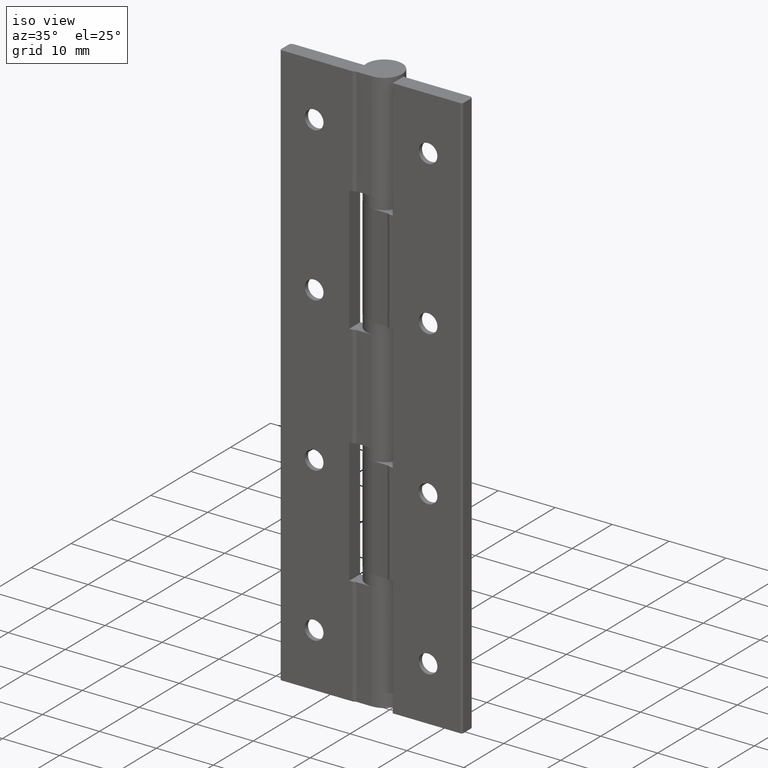
[diagram: clean part render]
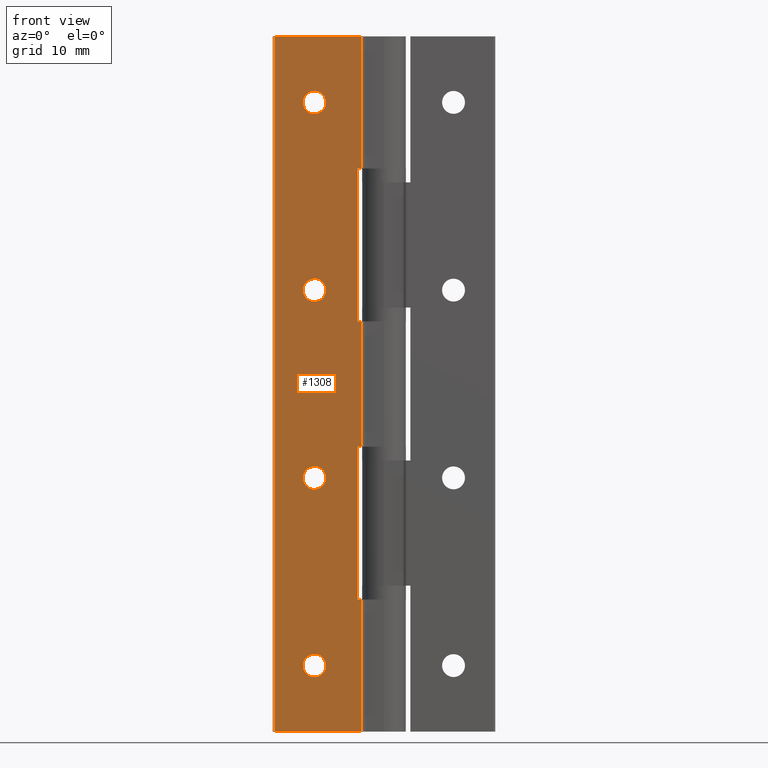
[diagram: tour spotlight — one face highlighted and labeled with its STEP entity id]
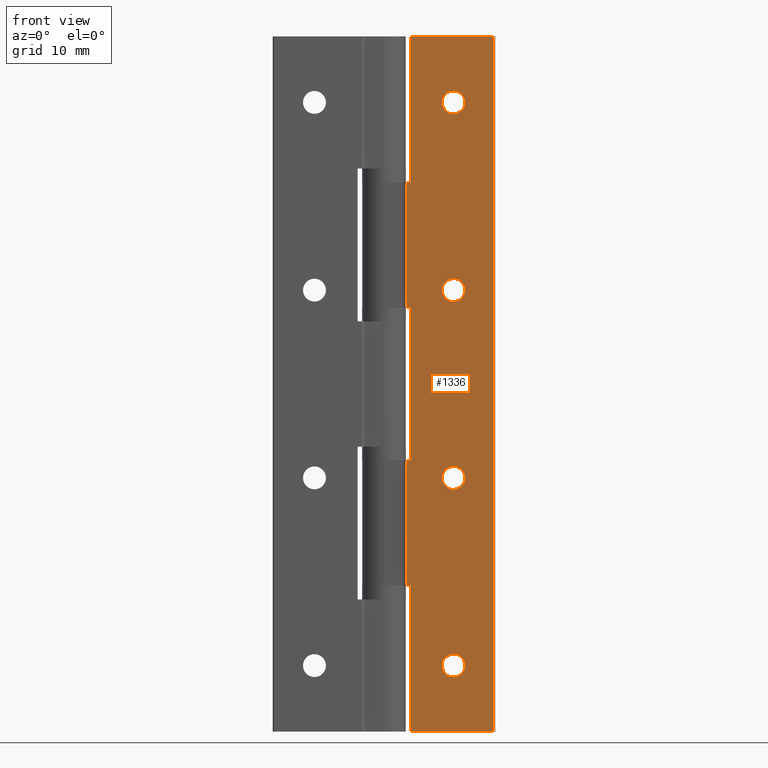
[diagram: tour spotlight — one face highlighted and labeled with its STEP entity id]
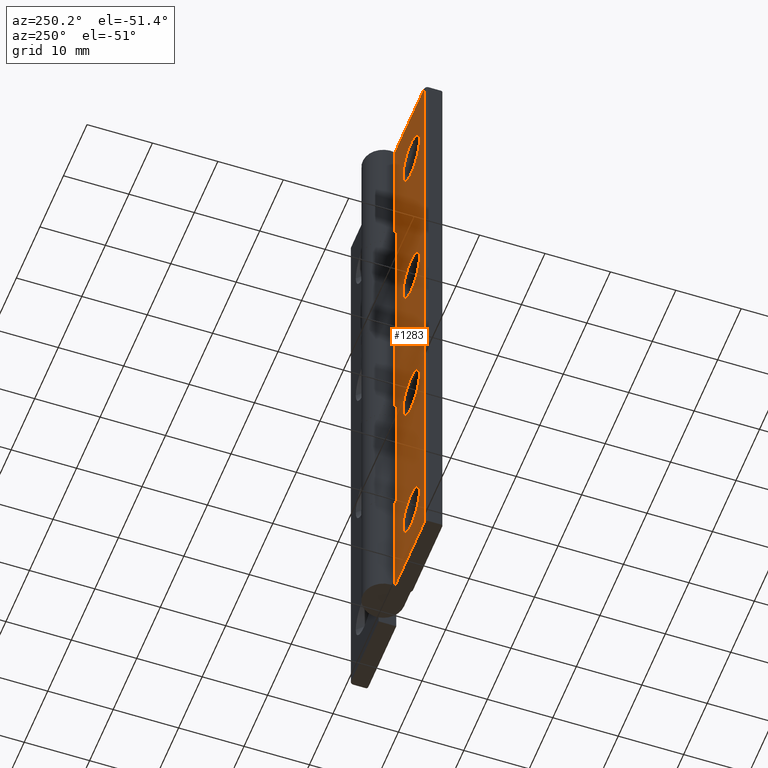
[diagram: tour spotlight — one face highlighted and labeled with its STEP entity id]
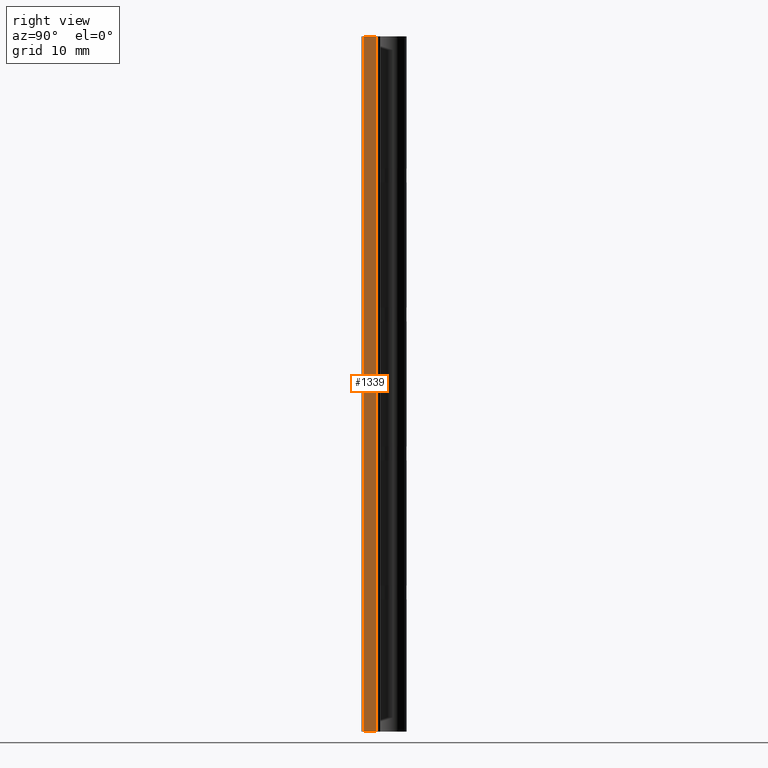
[diagram: tour spotlight — one face highlighted and labeled with its STEP entity id]
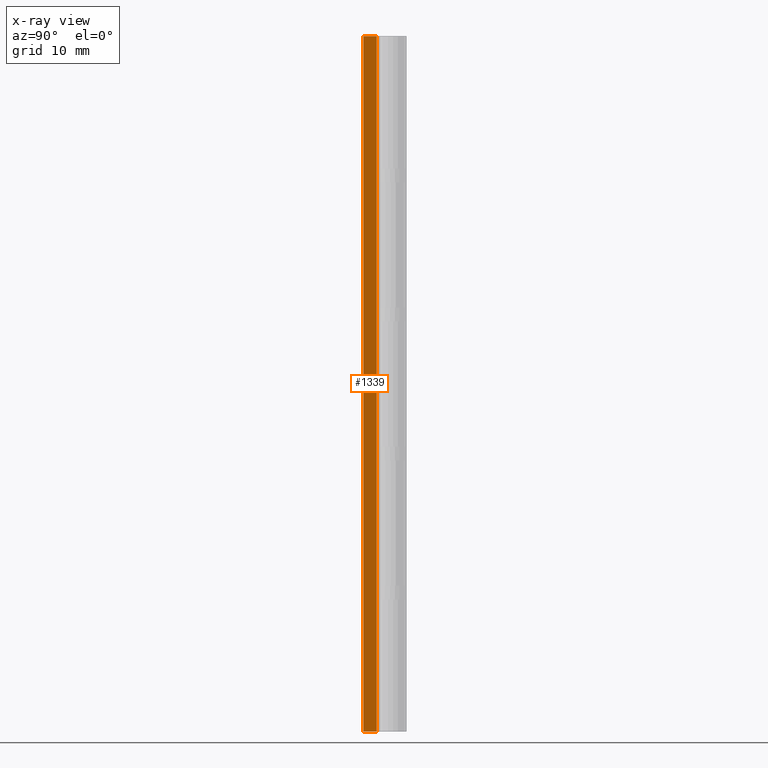
[diagram: x-ray of the same camera — body ghosted, this tour face saturated]
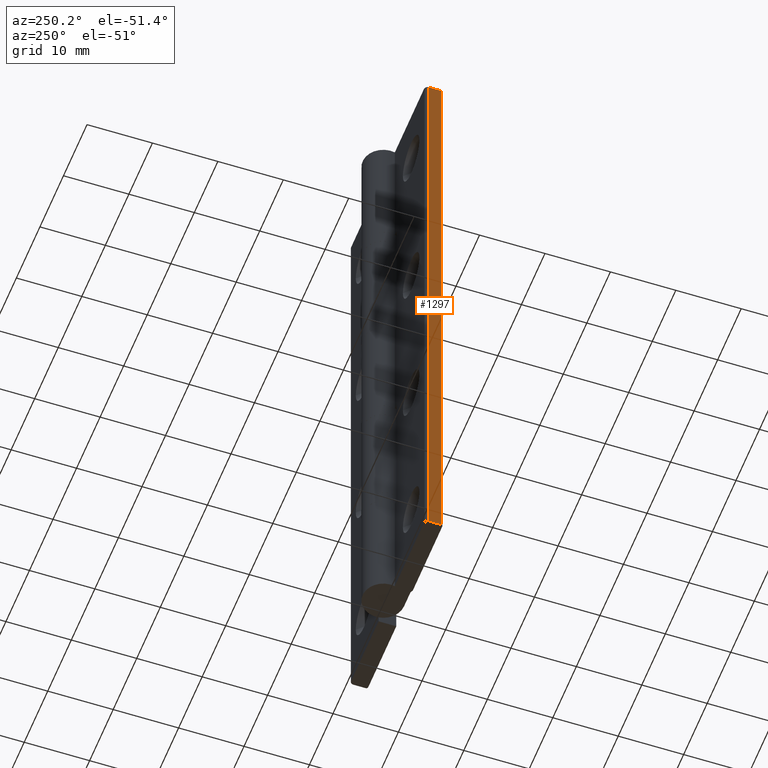
[diagram: tour spotlight — one face highlighted and labeled with its STEP entity id]
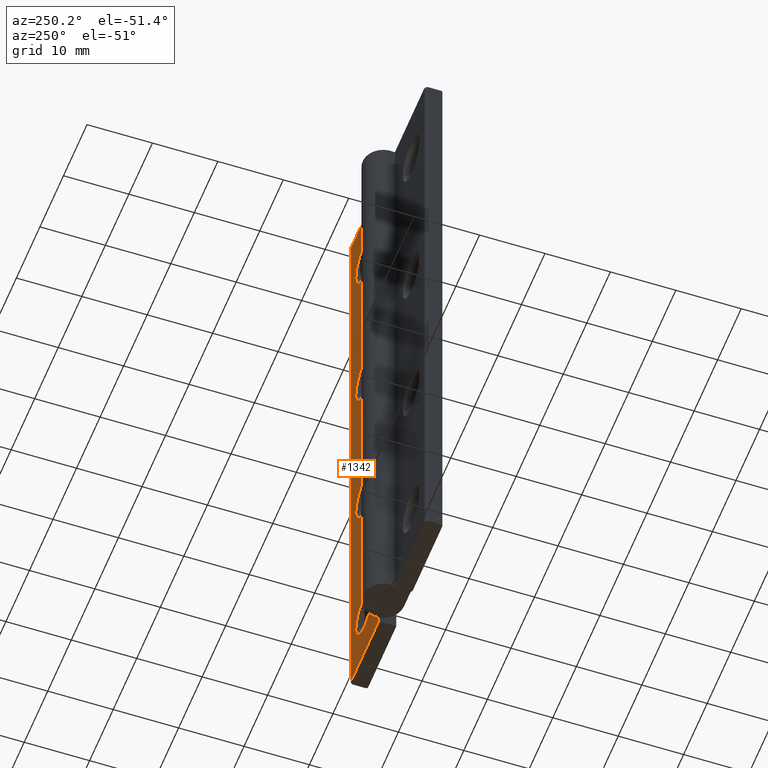
[diagram: tour spotlight — one face highlighted and labeled with its STEP entity id]
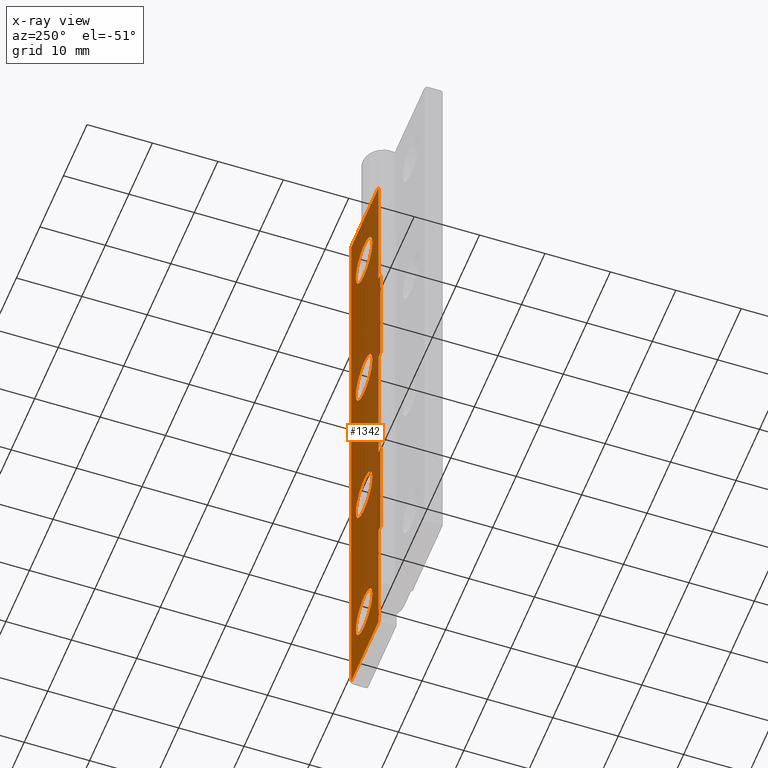
[diagram: x-ray of the same camera — body ghosted, this tour face saturated]
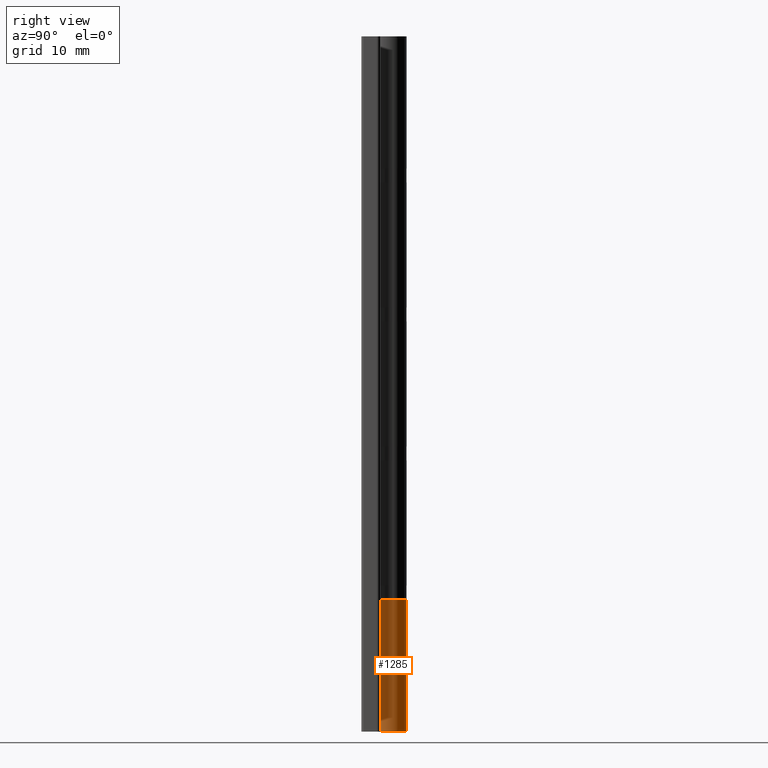
[diagram: tour spotlight — one face highlighted and labeled with its STEP entity id]
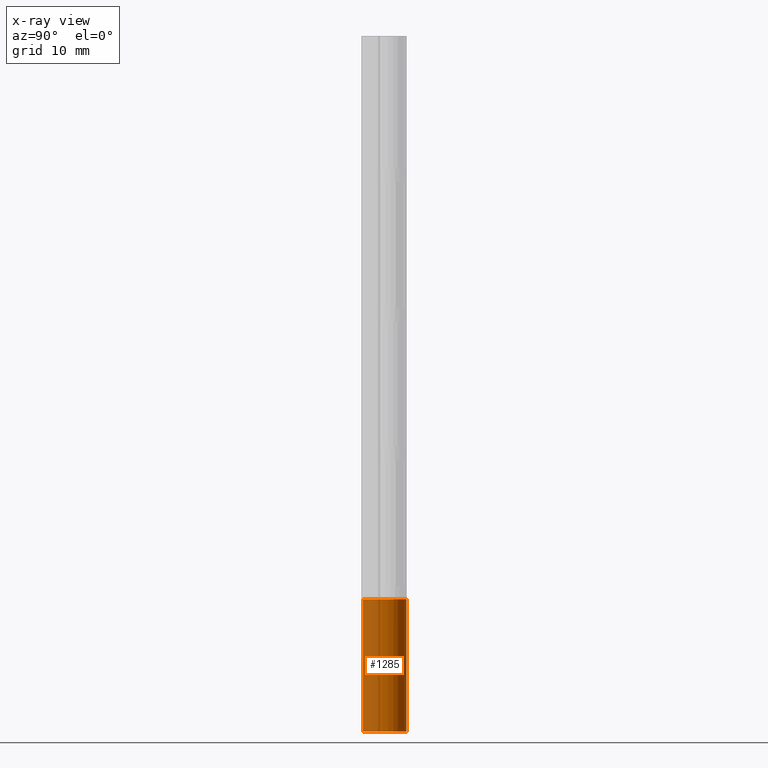
[diagram: x-ray of the same camera — body ghosted, this tour face saturated]
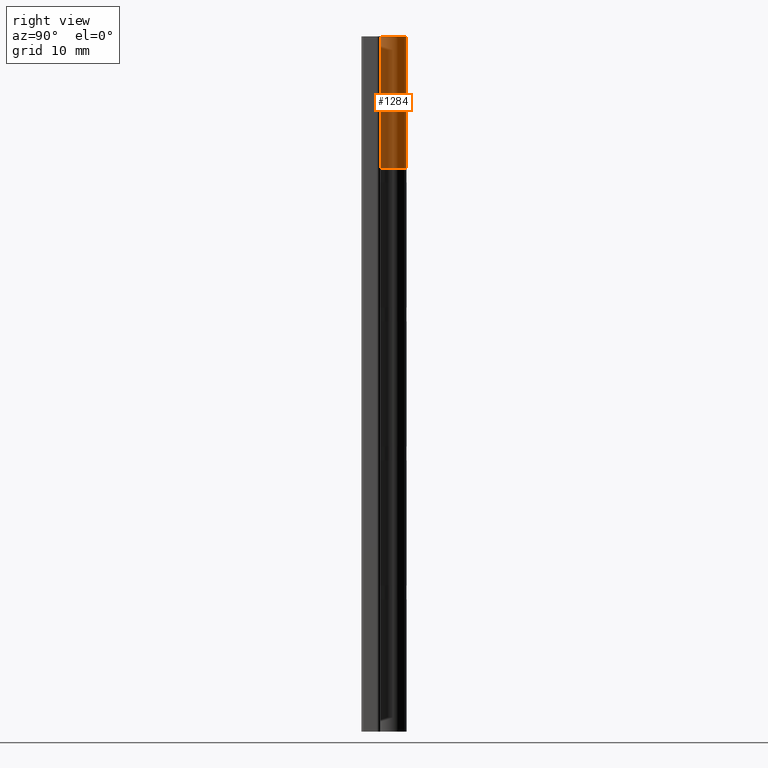
[diagram: tour spotlight — one face highlighted and labeled with its STEP entity id]
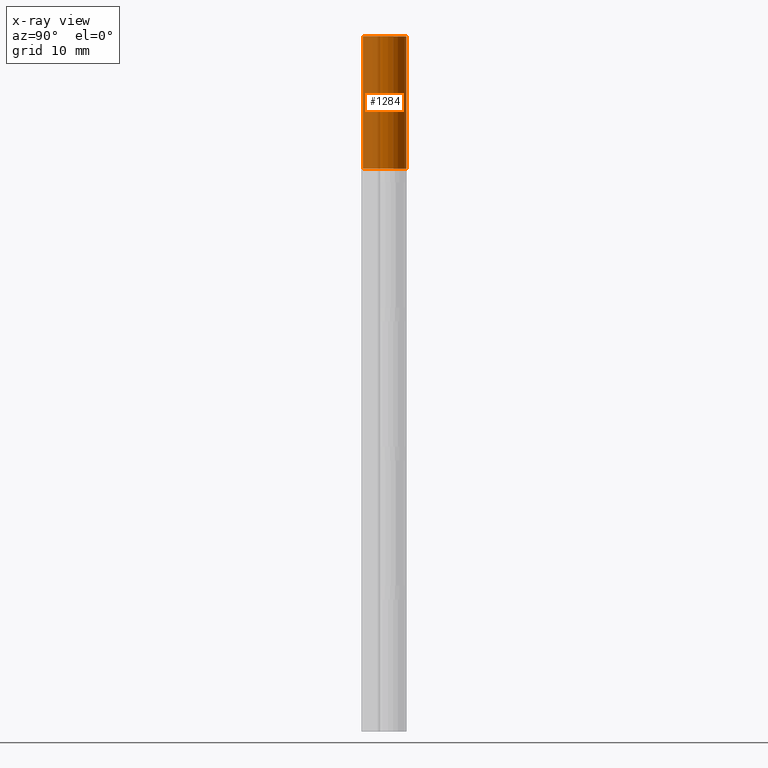
[diagram: x-ray of the same camera — body ghosted, this tour face saturated]
A machine part: a face-by-face anatomy tour. The part has 87 B-rep faces; the first image is the clean iso view, then the 8 largest visible faces are spotlighted one at a time (largest first), each with its STEP entity span.

Face 1 — front view, entity #1308. In plain terms, the highlighted planar face has unit normal (0, -1, 0).
Definition (entity closure, byte-faithful):
#117=FACE_BOUND('',#354,.T.);
#118=FACE_BOUND('',#355,.T.);
#119=FACE_BOUND('',#356,.T.);
#120=FACE_BOUND('',#357,.T.);
#182=CIRCLE('',#1413,1.65);
#184=CIRCLE('',#1417,1.65);
#186=CIRCLE('',#1421,1.65);
#188=CIRCLE('',#1425,1.65);
#259=FACE_OUTER_BOUND('',#353,.T.);
#353=EDGE_LOOP('',(#1045,#1046,#1047,#1048,#1049,#1050,#1051,#1052,#1053,
#1054,#1055,#1056));
#354=EDGE_LOOP('',(#1057));
#355=EDGE_LOOP('',(#1058));
#356=EDGE_LOOP('',(#1059));
#357=EDGE_LOOP('',(#1060));
#432=LINE('',#1950,#523);
#435=LINE('',#1956,#526);
#439=LINE('',#1977,#530);
#442=LINE('',#1987,#533);
#445=LINE('',#1993,#536);
#449=LINE('',#2014,#540);
#465=LINE('',#2065,#556);
#466=LINE('',#2068,#557);
#467=LINE('',#2079,#558);
#470=LINE('',#2087,#561);
#474=LINE('',#2120,#565);
#475=LINE('',#2122,#566);
#523=VECTOR('',#1527,22.);
#526=VECTOR('',#1532,0.517792998515527);
#530=VECTOR('',#1552,0.517792998515522);
#533=VECTOR('',#1559,22.);
#536=VECTOR('',#1564,0.517792998515518);
#540=VECTOR('',#1584,0.517792998515516);
#556=VECTOR('',#1638,19.);
#557=VECTOR('',#1641,19.);
#558=VECTOR('',#1654,100.);
#561=VECTOR('',#1663,12.4177929985155);
#565=VECTOR('',#1707,18.);
#566=VECTOR('',#1710,12.4177929985155);
#614=VERTEX_POINT('',#1947);
#615=VERTEX_POINT('',#1949);
#617=VERTEX_POINT('',#1955);
#626=VERTEX_POINT('',#1975);
#630=VERTEX_POINT('',#1984);
#631=VERTEX_POINT('',#1986);
#633=VERTEX_POINT('',#1992);
#642=VERTEX_POINT('',#2012);
#658=VERTEX_POINT('',#2063);
#659=VERTEX_POINT('',#2067);
#662=VERTEX_POINT('',#2076);
#663=VERTEX_POINT('',#2078);
#668=VERTEX_POINT('',#2098);
#670=VERTEX_POINT('',#2104);
#672=VERTEX_POINT('',#2110);
#674=VERTEX_POINT('',#2116);
#740=EDGE_CURVE('',#615,#614,#432,.T.);
#743=EDGE_CURVE('',#617,#615,#435,.T.);
#754=EDGE_CURVE('',#614,#626,#439,.T.);
#758=EDGE_CURVE('',#631,#630,#442,.T.);
#761=EDGE_CURVE('',#633,#631,#445,.T.);
#772=EDGE_CURVE('',#630,#642,#449,.T.);
#798=EDGE_CURVE('',#658,#642,#465,.T.);
#799=EDGE_CURVE('',#617,#659,#466,.T.);
#803=EDGE_CURVE('',#662,#663,#467,.T.);
#808=EDGE_CURVE('',#659,#662,#470,.T.);
#813=EDGE_CURVE('',#668,#668,#182,.T.);
#815=EDGE_CURVE('',#670,#670,#184,.T.);
#817=EDGE_CURVE('',#672,#672,#186,.T.);
#819=EDGE_CURVE('',#674,#674,#188,.T.);
#821=EDGE_CURVE('',#633,#626,#474,.T.);
#822=EDGE_CURVE('',#658,#663,#475,.T.);
#1045=ORIENTED_EDGE('',*,*,#754,.T.);
#1046=ORIENTED_EDGE('',*,*,#821,.F.);
#1047=ORIENTED_EDGE('',*,*,#761,.T.);
#1048=ORIENTED_EDGE('',*,*,#758,.T.);
#1049=ORIENTED_EDGE('',*,*,#772,.T.);
#1050=ORIENTED_EDGE('',*,*,#798,.F.);
#1051=ORIENTED_EDGE('',*,*,#822,.T.);
#1052=ORIENTED_EDGE('',*,*,#803,.F.);
#1053=ORIENTED_EDGE('',*,*,#808,.F.);
#1054=ORIENTED_EDGE('',*,*,#799,.F.);
#1055=ORIENTED_EDGE('',*,*,#743,.T.);
#1056=ORIENTED_EDGE('',*,*,#740,.T.);
#1057=ORIENTED_EDGE('',*,*,#813,.T.);
#1058=ORIENTED_EDGE('',*,*,#815,.T.);
#1059=ORIENTED_EDGE('',*,*,#817,.T.);
#1060=ORIENTED_EDGE('',*,*,#819,.T.);
#1256=PLANE('',#1427);
#1308=ADVANCED_FACE('',(#259,#117,#118,#119,#120),#1256,.T.);
#1413=AXIS2_PLACEMENT_3D('',#2099,#1678,#1679);
#1417=AXIS2_PLACEMENT_3D('',#2105,#1686,#1687);
#1421=AXIS2_PLACEMENT_3D('',#2111,#1694,#1695);
#1425=AXIS2_PLACEMENT_3D('',#2117,#1702,#1703);
#1427=AXIS2_PLACEMENT_3D('',#2121,#1708,#1709);
#1527=DIRECTION('',(2.01858731750028E-16,1.40067632319072E-32,1.));
#1532=DIRECTION('',(-1.,-6.93889390390723E-17,0.));
#1552=DIRECTION('',(1.,6.93889390390723E-17,0.));
#1559=DIRECTION('',(1.00929365875014E-16,7.00338161595358E-33,1.));
#1564=DIRECTION('',(-1.,-6.93889390390723E-17,0.));
#1584=DIRECTION('',(1.,6.93889390390723E-17,0.));
#1638=DIRECTION('',(0.,0.,-1.));
#1641=DIRECTION('',(0.,0.,-1.));
#1654=DIRECTION('',(0.,0.,1.));
#1663=DIRECTION('',(-1.,-6.93889390390723E-17,0.));
#1678=DIRECTION('center_axis',(-6.93889390390723E-17,1.,0.));
#1679=DIRECTION('ref_axis',(1.,0.,0.));
#1686=DIRECTION('center_axis',(-6.93889390390723E-17,1.,0.));
#1687=DIRECTION('ref_axis',(1.,0.,0.));
#1694=DIRECTION('center_axis',(-6.93889390390723E-17,1.,0.));
#1695=DIRECTION('ref_axis',(1.,0.,0.));
#1702=DIRECTION('center_axis',(-6.93889390390723E-17,1.,0.));
#1703=DIRECTION('ref_axis',(1.,0.,0.));
#1707=DIRECTION('',(0.,0.,-1.));
#1708=DIRECTION('center_axis',(6.93889390390723E-17,-1.,0.));
#1709=DIRECTION('ref_axis',(-1.,-6.93889390390723E-17,0.));
#1710=DIRECTION('',(-1.,-6.93889390390723E-17,0.));
#1947=CARTESIAN_POINT('',(-3.80000000000001,1.11022302462516E-15,-59.));
#1949=CARTESIAN_POINT('',(-3.80000000000001,1.11022302462516E-15,-81.));
#1950=CARTESIAN_POINT('',(-3.80000000000001,8.32667268468867E-16,-40.5));
#1955=CARTESIAN_POINT('',(-3.28220700148449,9.0205620750794E-16,-81.));
#1956=CARTESIAN_POINT('',(4.27262075863903,1.38777878078145E-15,-81.));
#1975=CARTESIAN_POINT('',(-3.28220700148449,9.0205620750794E-16,-59.));
#1977=CARTESIAN_POINT('',(-1.90000000000001,1.11022302462516E-15,-59.));
#1984=CARTESIAN_POINT('',(-3.8,1.11022302462516E-15,-19.));
#1986=CARTESIAN_POINT('',(-3.80000000000001,1.11022302462516E-15,-41.));
#1987=CARTESIAN_POINT('',(-3.8,8.32667268468867E-16,-20.5));
#1992=CARTESIAN_POINT('',(-3.28220700148449,9.0205620750794E-16,-41.));
#1993=CARTESIAN_POINT('',(3.20293429215495,1.38777878078145E-15,-41.));
#2012=CARTESIAN_POINT('',(-3.28220700148449,9.0205620750794E-16,-19.));
#2014=CARTESIAN_POINT('',(-1.9,1.11022302462516E-15,-19.));
#2063=CARTESIAN_POINT('',(-3.28220700148449,8.82474163085533E-16,0.));
#2065=CARTESIAN_POINT('',(-3.28220700148449,9.0205620750794E-16,0.));
#2067=CARTESIAN_POINT('',(-3.28220700148449,8.82474163085533E-16,-100.));
#2068=CARTESIAN_POINT('',(-3.28220700148449,9.0205620750794E-16,0.));
#2076=CARTESIAN_POINT('',(-15.7,2.08166817117216E-17,-100.));
#2078=CARTESIAN_POINT('',(-15.7,2.08166817117216E-17,0.));
#2079=CARTESIAN_POINT('',(-15.7,3.46944695195361E-17,0.));
#2087=CARTESIAN_POINT('',(1.65327317884893E-16,1.11022302462516E-15,-100.));
#2098=CARTESIAN_POINT('',(-11.65,0.,-36.5));
#2099=CARTESIAN_POINT('Origin',(-10.,0.,-36.5));
#2104=CARTESIAN_POINT('',(-11.65,0.,-90.5));
#2105=CARTESIAN_POINT('Origin',(-10.,0.,-90.5));
#2110=CARTESIAN_POINT('',(-11.65,0.,-63.5));
#2111=CARTESIAN_POINT('Origin',(-10.,0.,-63.5));
#2116=CARTESIAN_POINT('',(-11.65,0.,-9.5));
#2117=CARTESIAN_POINT('Origin',(-10.,0.,-9.5));
#2120=CARTESIAN_POINT('',(-3.28220700148449,9.0205620750794E-16,0.));
#2121=CARTESIAN_POINT('Origin',(1.65327317884893E-16,1.11022302462516E-15,
0.));
#2122=CARTESIAN_POINT('',(1.65327317884893E-16,1.11022302462516E-15,0.));

Face 2 — front view, entity #1336. In plain terms, the highlighted planar face has unit normal (0, -1, 0).
Definition (entity closure, byte-faithful):
#132=FACE_BOUND('',#397,.T.);
#133=FACE_BOUND('',#398,.T.);
#134=FACE_BOUND('',#399,.T.);
#135=FACE_BOUND('',#400,.T.);
#214=CIRCLE('',#1484,1.65);
#215=CIRCLE('',#1485,1.65);
#216=CIRCLE('',#1486,1.65);
#217=CIRCLE('',#1487,1.65);
#287=FACE_OUTER_BOUND('',#396,.T.);
#396=EDGE_LOOP('',(#1175,#1176,#1177,#1178,#1179,#1180,#1181,#1182,#1183,
#1184,#1185,#1186));
#397=EDGE_LOOP('',(#1187));
#398=EDGE_LOOP('',(#1188));
#399=EDGE_LOOP('',(#1189));
#400=EDGE_LOOP('',(#1190));
#479=LINE('',#2159,#570);
#483=LINE('',#2174,#574);
#486=LINE('',#2186,#577);
#489=LINE('',#2196,#580);
#493=LINE('',#2209,#584);
#496=LINE('',#2219,#587);
#500=LINE('',#2234,#591);
#501=LINE('',#2237,#592);
#512=LINE('',#2260,#603);
#513=LINE('',#2262,#604);
#514=LINE('',#2265,#605);
#515=LINE('',#2266,#606);
#570=VECTOR('',#1758,0.51779299851551);
#574=VECTOR('',#1772,22.);
#577=VECTOR('',#1783,0.517792998515508);
#580=VECTOR('',#1790,21.);
#584=VECTOR('',#1802,0.517792998515508);
#587=VECTOR('',#1809,0.517792998515507);
#591=VECTOR('',#1823,21.);
#592=VECTOR('',#1826,11.9);
#603=VECTOR('',#1855,18.);
#604=VECTOR('',#1858,18.);
#605=VECTOR('',#1861,11.9);
#606=VECTOR('',#1862,100.);
#684=VERTEX_POINT('',#2156);
#685=VERTEX_POINT('',#2158);
#691=VERTEX_POINT('',#2172);
#696=VERTEX_POINT('',#2184);
#700=VERTEX_POINT('',#2193);
#701=VERTEX_POINT('',#2195);
#706=VERTEX_POINT('',#2207);
#710=VERTEX_POINT('',#2216);
#711=VERTEX_POINT('',#2218);
#717=VERTEX_POINT('',#2232);
#718=VERTEX_POINT('',#2236);
#722=VERTEX_POINT('',#2264);
#723=VERTEX_POINT('',#2267);
#724=VERTEX_POINT('',#2269);
#725=VERTEX_POINT('',#2271);
#726=VERTEX_POINT('',#2273);
#833=EDGE_CURVE('',#685,#684,#479,.T.);
#841=EDGE_CURVE('',#684,#691,#483,.T.);
#847=EDGE_CURVE('',#691,#696,#486,.T.);
#851=EDGE_CURVE('',#701,#700,#489,.T.);
#858=EDGE_CURVE('',#700,#706,#493,.T.);
#862=EDGE_CURVE('',#711,#710,#496,.T.);
#870=EDGE_CURVE('',#710,#717,#500,.T.);
#871=EDGE_CURVE('',#718,#701,#501,.T.);
#884=EDGE_CURVE('',#711,#696,#512,.T.);
#885=EDGE_CURVE('',#685,#706,#513,.T.);
#886=EDGE_CURVE('',#722,#717,#514,.T.);
#887=EDGE_CURVE('',#718,#722,#515,.T.);
#888=EDGE_CURVE('',#723,#723,#214,.T.);
#889=EDGE_CURVE('',#724,#724,#215,.T.);
#890=EDGE_CURVE('',#725,#725,#216,.T.);
#891=EDGE_CURVE('',#726,#726,#217,.T.);
#1175=ORIENTED_EDGE('',*,*,#833,.T.);
#1176=ORIENTED_EDGE('',*,*,#841,.T.);
#1177=ORIENTED_EDGE('',*,*,#847,.T.);
#1178=ORIENTED_EDGE('',*,*,#884,.F.);
#1179=ORIENTED_EDGE('',*,*,#862,.T.);
#1180=ORIENTED_EDGE('',*,*,#870,.T.);
#1181=ORIENTED_EDGE('',*,*,#886,.F.);
#1182=ORIENTED_EDGE('',*,*,#887,.F.);
#1183=ORIENTED_EDGE('',*,*,#871,.T.);
#1184=ORIENTED_EDGE('',*,*,#851,.T.);
#1185=ORIENTED_EDGE('',*,*,#858,.T.);
#1186=ORIENTED_EDGE('',*,*,#885,.F.);
#1187=ORIENTED_EDGE('',*,*,#888,.T.);
#1188=ORIENTED_EDGE('',*,*,#889,.T.);
#1189=ORIENTED_EDGE('',*,*,#890,.T.);
#1190=ORIENTED_EDGE('',*,*,#891,.T.);
#1273=PLANE('',#1483);
#1336=ADVANCED_FACE('',(#287,#132,#133,#134,#135),#1273,.T.);
#1483=AXIS2_PLACEMENT_3D('',#2263,#1859,#1860);
#1484=AXIS2_PLACEMENT_3D('',#2268,#1863,#1864);
#1485=AXIS2_PLACEMENT_3D('',#2270,#1865,#1866);
#1486=AXIS2_PLACEMENT_3D('',#2272,#1867,#1868);
#1487=AXIS2_PLACEMENT_3D('',#2274,#1869,#1870);
#1758=DIRECTION('',(1.,1.73472347597681E-16,0.));
#1772=DIRECTION('',(-9.46212805078258E-17,-1.64141756623912E-32,-1.));
#1783=DIRECTION('',(-1.,-1.73472347597681E-16,0.));
#1790=DIRECTION('',(-1.71820230001512E-16,-2.98060586631358E-32,-1.));
#1802=DIRECTION('',(-1.,-1.73472347597681E-16,0.));
#1809=DIRECTION('',(1.,1.73472347597681E-16,0.));
#1823=DIRECTION('',(-5.28677630773884E-17,-9.17109497327255E-33,-1.));
#1826=DIRECTION('',(-1.,-1.73472347597681E-16,0.));
#1855=DIRECTION('',(0.,0.,1.));
#1858=DIRECTION('',(0.,0.,1.));
#1859=DIRECTION('center_axis',(1.73472347597681E-16,-1.,0.));
#1860=DIRECTION('ref_axis',(-1.,-1.77635683940025E-16,0.));
#1861=DIRECTION('',(-1.,-1.73472347597681E-16,0.));
#1862=DIRECTION('',(0.,0.,-1.));
#1863=DIRECTION('center_axis',(-1.73472347597681E-16,1.,0.));
#1864=DIRECTION('ref_axis',(1.,0.,0.));
#1865=DIRECTION('center_axis',(-1.73472347597681E-16,1.,0.));
#1866=DIRECTION('ref_axis',(1.,0.,0.));
#1867=DIRECTION('center_axis',(-1.73472347597681E-16,1.,0.));
#1868=DIRECTION('ref_axis',(1.,0.,0.));
#1869=DIRECTION('center_axis',(-1.73472347597681E-16,1.,0.));
#1870=DIRECTION('ref_axis',(1.,0.,0.));
#2156=CARTESIAN_POINT('',(3.8,-3.35,-39.));
#2158=CARTESIAN_POINT('',(3.28220700148449,-3.35,-39.));
#2159=CARTESIAN_POINT('',(4.02527069555838,-3.35,-39.));
#2172=CARTESIAN_POINT('',(3.8,-3.35,-61.));
#2174=CARTESIAN_POINT('',(3.8,-3.35,-19.5));
#2184=CARTESIAN_POINT('',(3.28220700148449,-3.35,-61.));
#2186=CARTESIAN_POINT('',(9.9,-3.35,-61.));
#2193=CARTESIAN_POINT('',(3.8,-3.35,-21.));
#2195=CARTESIAN_POINT('',(3.8,-3.35,0.));
#2196=CARTESIAN_POINT('',(3.8,-3.35,1.04810340300922E-15));
#2207=CARTESIAN_POINT('',(3.28220700148449,-3.35,-21.));
#2209=CARTESIAN_POINT('',(9.9,-3.35,-21.));
#2216=CARTESIAN_POINT('',(3.8,-3.35,-79.));
#2218=CARTESIAN_POINT('',(3.28220700148449,-3.35,-79.));
#2219=CARTESIAN_POINT('',(5.2764002551698,-3.35,-79.));
#2232=CARTESIAN_POINT('',(3.79999999999999,-3.35,-100.));
#2234=CARTESIAN_POINT('',(3.8,-3.35,-39.5));
#2236=CARTESIAN_POINT('',(15.7,-3.35,0.));
#2237=CARTESIAN_POINT('',(16.,-3.35,0.));
#2260=CARTESIAN_POINT('',(3.28220700148449,-3.35,0.));
#2262=CARTESIAN_POINT('',(3.28220700148449,-3.35,0.));
#2263=CARTESIAN_POINT('Origin',(16.,-3.35,0.));
#2264=CARTESIAN_POINT('',(15.7,-3.35,-100.));
#2265=CARTESIAN_POINT('',(16.,-3.35,-100.));
#2266=CARTESIAN_POINT('',(15.7,-3.35,0.));
#2267=CARTESIAN_POINT('',(8.35,-3.34999999999999,-9.5));
#2268=CARTESIAN_POINT('Origin',(10.,-3.34999999999999,-9.5));
#2269=CARTESIAN_POINT('',(8.35,-3.34999999999999,-90.5));
#2270=CARTESIAN_POINT('Origin',(10.,-3.34999999999999,-90.5));
#2271=CARTESIAN_POINT('',(8.35,-3.34999999999999,-63.5));
#2272=CARTESIAN_POINT('Origin',(10.,-3.34999999999999,-63.5));
#2273=CARTESIAN_POINT('',(8.35,-3.34999999999999,-36.5));
#2274=CARTESIAN_POINT('Origin',(10.,-3.34999999999999,-36.5));

Face 3 — auxiliary view, entity #1283. In plain terms, the highlighted planar face has unit normal (0, 1, 0).
Definition (entity closure, byte-faithful):
#102=FACE_BOUND('',#314,.T.);
#103=FACE_BOUND('',#315,.T.);
#104=FACE_BOUND('',#316,.T.);
#105=FACE_BOUND('',#317,.T.);
#166=CIRCLE('',#1380,3.5);
#167=CIRCLE('',#1381,3.5);
#168=CIRCLE('',#1382,3.5);
#169=CIRCLE('',#1383,3.5);
#234=FACE_OUTER_BOUND('',#313,.T.);
#313=EDGE_LOOP('',(#947,#948,#949,#950,#951,#952,#953,#954,#955,#956,#957,
#958));
#314=EDGE_LOOP('',(#959));
#315=EDGE_LOOP('',(#960));
#316=EDGE_LOOP('',(#961));
#317=EDGE_LOOP('',(#962));
#430=LINE('',#1946,#521);
#434=LINE('',#1954,#525);
#437=LINE('',#1968,#528);
#440=LINE('',#1983,#531);
#444=LINE('',#1991,#535);
#447=LINE('',#2005,#538);
#450=LINE('',#2019,#541);
#451=LINE('',#2021,#542);
#452=LINE('',#2023,#543);
#453=LINE('',#2025,#544);
#454=LINE('',#2026,#545);
#455=LINE('',#2027,#546);
#521=VECTOR('',#1525,22.);
#525=VECTOR('',#1531,0.717792998515526);
#528=VECTOR('',#1544,0.717792998515522);
#531=VECTOR('',#1557,22.);
#535=VECTOR('',#1563,0.717792998515517);
#538=VECTOR('',#1576,0.717792998515515);
#541=VECTOR('',#1589,19.);
#542=VECTOR('',#1590,12.4177929985155);
#543=VECTOR('',#1591,100.);
#544=VECTOR('',#1592,12.4177929985155);
#545=VECTOR('',#1593,19.);
#546=VECTOR('',#1594,18.);
#612=VERTEX_POINT('',#1944);
#613=VERTEX_POINT('',#1945);
#616=VERTEX_POINT('',#1953);
#622=VERTEX_POINT('',#1967);
#628=VERTEX_POINT('',#1981);
#629=VERTEX_POINT('',#1982);
#632=VERTEX_POINT('',#1990);
#638=VERTEX_POINT('',#2004);
#644=VERTEX_POINT('',#2018);
#645=VERTEX_POINT('',#2020);
#646=VERTEX_POINT('',#2022);
#647=VERTEX_POINT('',#2024);
#648=VERTEX_POINT('',#2028);
#649=VERTEX_POINT('',#2030);
#650=VERTEX_POINT('',#2032);
#651=VERTEX_POINT('',#2034);
#738=EDGE_CURVE('',#612,#613,#430,.T.);
#742=EDGE_CURVE('',#613,#616,#434,.T.);
#749=EDGE_CURVE('',#622,#612,#437,.T.);
#756=EDGE_CURVE('',#628,#629,#440,.T.);
#760=EDGE_CURVE('',#629,#632,#444,.T.);
#767=EDGE_CURVE('',#638,#628,#447,.T.);
#774=EDGE_CURVE('',#644,#616,#450,.T.);
#775=EDGE_CURVE('',#645,#644,#451,.T.);
#776=EDGE_CURVE('',#646,#645,#452,.T.);
#777=EDGE_CURVE('',#646,#647,#453,.T.);
#778=EDGE_CURVE('',#638,#647,#454,.T.);
#779=EDGE_CURVE('',#622,#632,#455,.T.);
#780=EDGE_CURVE('',#648,#648,#166,.T.);
#781=EDGE_CURVE('',#649,#649,#167,.T.);
#782=EDGE_CURVE('',#650,#650,#168,.T.);
#783=EDGE_CURVE('',#651,#651,#169,.T.);
#947=ORIENTED_EDGE('',*,*,#749,.T.);
#948=ORIENTED_EDGE('',*,*,#738,.T.);
#949=ORIENTED_EDGE('',*,*,#742,.T.);
#950=ORIENTED_EDGE('',*,*,#774,.F.);
#951=ORIENTED_EDGE('',*,*,#775,.F.);
#952=ORIENTED_EDGE('',*,*,#776,.F.);
#953=ORIENTED_EDGE('',*,*,#777,.T.);
#954=ORIENTED_EDGE('',*,*,#778,.F.);
#955=ORIENTED_EDGE('',*,*,#767,.T.);
#956=ORIENTED_EDGE('',*,*,#756,.T.);
#957=ORIENTED_EDGE('',*,*,#760,.T.);
#958=ORIENTED_EDGE('',*,*,#779,.F.);
#959=ORIENTED_EDGE('',*,*,#780,.T.);
#960=ORIENTED_EDGE('',*,*,#781,.T.);
#961=ORIENTED_EDGE('',*,*,#782,.T.);
#962=ORIENTED_EDGE('',*,*,#783,.T.);
#1251=PLANE('',#1379);
#1283=ADVANCED_FACE('',(#234,#102,#103,#104,#105),#1251,.T.);
#1379=AXIS2_PLACEMENT_3D('',#2017,#1587,#1588);
#1380=AXIS2_PLACEMENT_3D('',#2029,#1595,#1596);
#1381=AXIS2_PLACEMENT_3D('',#2031,#1597,#1598);
#1382=AXIS2_PLACEMENT_3D('',#2033,#1599,#1600);
#1383=AXIS2_PLACEMENT_3D('',#2035,#1601,#1602);
#1525=DIRECTION('',(-2.01858731750028E-16,0.,-1.));
#1531=DIRECTION('',(1.,0.,0.));
#1544=DIRECTION('',(-1.,0.,0.));
#1557=DIRECTION('',(-1.00929365875014E-16,0.,-1.));
#1563=DIRECTION('',(1.,0.,0.));
#1576=DIRECTION('',(-1.,0.,0.));
#1587=DIRECTION('center_axis',(0.,1.,0.));
#1588=DIRECTION('ref_axis',(1.,0.,0.));
#1589=DIRECTION('',(0.,0.,1.));
#1590=DIRECTION('',(1.,0.,0.));
#1591=DIRECTION('',(0.,0.,-1.));
#1592=DIRECTION('',(1.,0.,0.));
#1593=DIRECTION('',(0.,0.,1.));
#1594=DIRECTION('',(0.,0.,1.));
#1595=DIRECTION('center_axis',(0.,-1.,0.));
#1596=DIRECTION('ref_axis',(1.,0.,0.));
#1597=DIRECTION('center_axis',(0.,-1.,0.));
#1598=DIRECTION('ref_axis',(1.,0.,0.));
#1599=DIRECTION('center_axis',(0.,-1.,0.));
#1600=DIRECTION('ref_axis',(1.,0.,0.));
#1601=DIRECTION('center_axis',(0.,-1.,0.));
#1602=DIRECTION('ref_axis',(1.,0.,0.));
#1944=CARTESIAN_POINT('',(-3.80000000000001,2.7,-59.));
#1945=CARTESIAN_POINT('',(-3.80000000000001,2.7,-81.));
#1946=CARTESIAN_POINT('',(-3.80000000000001,2.7,-40.5));
#1953=CARTESIAN_POINT('',(-3.08220700148449,2.7,-81.));
#1954=CARTESIAN_POINT('',(-3.72737924136097,2.7,-81.));
#1967=CARTESIAN_POINT('',(-3.08220700148449,2.7,-59.));
#1968=CARTESIAN_POINT('',(-9.90000000000001,2.7,-59.));
#1981=CARTESIAN_POINT('',(-3.8,2.7,-19.));
#1982=CARTESIAN_POINT('',(-3.80000000000001,2.7,-41.));
#1983=CARTESIAN_POINT('',(-3.8,2.7,-20.5));
#1990=CARTESIAN_POINT('',(-3.08220700148449,2.7,-41.));
#1991=CARTESIAN_POINT('',(-4.79706570784505,2.7,-41.));
#2004=CARTESIAN_POINT('',(-3.08220700148449,2.7,-19.));
#2005=CARTESIAN_POINT('',(-9.9,2.7,-19.));
#2017=CARTESIAN_POINT('Origin',(-16.,2.7,0.));
#2018=CARTESIAN_POINT('',(-3.08220700148449,2.7,-100.));
#2019=CARTESIAN_POINT('',(-3.08220700148449,2.7,0.));
#2020=CARTESIAN_POINT('',(-15.5,2.7,-100.));
#2021=CARTESIAN_POINT('',(-16.,2.7,-100.));
#2022=CARTESIAN_POINT('',(-15.5,2.7,0.));
#2023=CARTESIAN_POINT('',(-15.5,2.7,0.));
#2024=CARTESIAN_POINT('',(-3.08220700148449,2.7,0.));
#2025=CARTESIAN_POINT('',(-16.,2.7,0.));
#2026=CARTESIAN_POINT('',(-3.08220700148449,2.7,0.));
#2027=CARTESIAN_POINT('',(-3.08220700148449,2.7,0.));
#2028=CARTESIAN_POINT('',(-6.5,2.7,-9.5));
#2029=CARTESIAN_POINT('Origin',(-10.,2.7,-9.5));
#2030=CARTESIAN_POINT('',(-6.5,2.7,-63.5));
#2031=CARTESIAN_POINT('Origin',(-10.,2.7,-63.5));
#2032=CARTESIAN_POINT('',(-6.5,2.7,-90.5));
#2033=CARTESIAN_POINT('Origin',(-10.,2.7,-90.5));
#2034=CARTESIAN_POINT('',(-6.5,2.7,-36.5));
#2035=CARTESIAN_POINT('Origin',(-10.,2.7,-36.5));

Face 4 — right view, entity #1339. An x-ray twin of the same camera follows (body ghosted, this face saturated) — the face is partly hidden behind the body. In plain terms, the highlighted planar face has unit normal (1, 0, 0).
Definition (entity closure, byte-faithful):
#290=FACE_OUTER_BOUND('',#404,.T.);
#404=EDGE_LOOP('',(#1197,#1198,#1199,#1200));
#502=LINE('',#2241,#593);
#516=LINE('',#2279,#607);
#517=LINE('',#2282,#608);
#518=LINE('',#2283,#609);
#593=VECTOR('',#1829,1.9);
#607=VECTOR('',#1877,100.);
#608=VECTOR('',#1880,1.9);
#609=VECTOR('',#1881,100.);
#719=VERTEX_POINT('',#2238);
#720=VERTEX_POINT('',#2240);
#727=VERTEX_POINT('',#2277);
#728=VERTEX_POINT('',#2281);
#873=EDGE_CURVE('',#720,#719,#502,.T.);
#893=EDGE_CURVE('',#727,#719,#516,.T.);
#894=EDGE_CURVE('',#728,#727,#517,.T.);
#895=EDGE_CURVE('',#720,#728,#518,.T.);
#1197=ORIENTED_EDGE('',*,*,#893,.F.);
#1198=ORIENTED_EDGE('',*,*,#894,.F.);
#1199=ORIENTED_EDGE('',*,*,#895,.F.);
#1200=ORIENTED_EDGE('',*,*,#873,.T.);
#1274=PLANE('',#1491);
#1339=ADVANCED_FACE('',(#290),#1274,.T.);
#1491=AXIS2_PLACEMENT_3D('',#2280,#1878,#1879);
#1829=DIRECTION('',(0.,-1.,0.));
#1877=DIRECTION('',(0.,0.,1.));
#1878=DIRECTION('center_axis',(1.,0.,0.));
#1879=DIRECTION('ref_axis',(0.,-1.,0.));
#1880=DIRECTION('',(0.,-1.,0.));
#1881=DIRECTION('',(0.,0.,-1.));
#2238=CARTESIAN_POINT('',(16.,-3.05,0.));
#2240=CARTESIAN_POINT('',(16.,-1.15,0.));
#2241=CARTESIAN_POINT('',(16.,-0.649999999999999,0.));
#2277=CARTESIAN_POINT('',(16.,-3.05,-100.));
#2279=CARTESIAN_POINT('',(16.,-3.05,0.));
#2280=CARTESIAN_POINT('Origin',(16.,-0.649999999999999,0.));
#2281=CARTESIAN_POINT('',(16.,-1.15,-100.));
#2282=CARTESIAN_POINT('',(16.,-0.649999999999999,-100.));
#2283=CARTESIAN_POINT('',(16.,-1.15,0.));

Face 5 — auxiliary view, entity #1297. In plain terms, the highlighted planar face has unit normal (-1, 0, 0).
Definition (entity closure, byte-faithful):
#248=FACE_OUTER_BOUND('',#334,.T.);
#334=EDGE_LOOP('',(#1017,#1018,#1019,#1020));
#468=LINE('',#2082,#559);
#469=LINE('',#2085,#560);
#471=LINE('',#2090,#562);
#472=LINE('',#2091,#563);
#559=VECTOR('',#1657,100.);
#560=VECTOR('',#1660,1.9);
#562=VECTOR('',#1666,1.9);
#563=VECTOR('',#1667,100.);
#661=VERTEX_POINT('',#2075);
#664=VERTEX_POINT('',#2080);
#665=VERTEX_POINT('',#2084);
#666=VERTEX_POINT('',#2089);
#805=EDGE_CURVE('',#664,#661,#468,.T.);
#806=EDGE_CURVE('',#661,#665,#469,.T.);
#809=EDGE_CURVE('',#664,#666,#471,.T.);
#810=EDGE_CURVE('',#665,#666,#472,.T.);
#1017=ORIENTED_EDGE('',*,*,#805,.F.);
#1018=ORIENTED_EDGE('',*,*,#809,.T.);
#1019=ORIENTED_EDGE('',*,*,#810,.F.);
#1020=ORIENTED_EDGE('',*,*,#806,.F.);
#1255=PLANE('',#1407);
#1297=ADVANCED_FACE('',(#248),#1255,.T.);
#1407=AXIS2_PLACEMENT_3D('',#2088,#1664,#1665);
#1657=DIRECTION('',(0.,0.,-1.));
#1660=DIRECTION('',(0.,1.,0.));
#1664=DIRECTION('center_axis',(-1.,0.,0.));
#1665=DIRECTION('ref_axis',(0.,1.,0.));
#1666=DIRECTION('',(0.,1.,0.));
#1667=DIRECTION('',(0.,0.,1.));
#2075=CARTESIAN_POINT('',(-16.,0.3,-100.));
#2080=CARTESIAN_POINT('',(-16.,0.3,0.));
#2082=CARTESIAN_POINT('',(-16.,0.3,0.));
#2084=CARTESIAN_POINT('',(-16.,2.2,-100.));
#2085=CARTESIAN_POINT('',(-16.,0.,-100.));
#2088=CARTESIAN_POINT('Origin',(-16.,0.,0.));
#2089=CARTESIAN_POINT('',(-16.,2.2,0.));
#2090=CARTESIAN_POINT('',(-16.,0.,0.));
#2091=CARTESIAN_POINT('',(-16.,2.2,0.));

Face 6 — auxiliary view, entity #1342. An x-ray twin of the same camera follows (body ghosted, this face saturated) — the face is partly hidden behind the body. In plain terms, the highlighted planar face has unit normal (0, 1, 0).
Definition (entity closure, byte-faithful):
#137=FACE_BOUND('',#408,.T.);
#138=FACE_BOUND('',#409,.T.);
#139=FACE_BOUND('',#410,.T.);
#140=FACE_BOUND('',#411,.T.);
#220=CIRCLE('',#1496,3.5);
#221=CIRCLE('',#1497,3.5);
#222=CIRCLE('',#1498,3.5);
#223=CIRCLE('',#1499,3.5);
#293=FACE_OUTER_BOUND('',#407,.T.);
#407=EDGE_LOOP('',(#1211,#1212,#1213,#1214,#1215,#1216,#1217,#1218,#1219,
#1220,#1221,#1222));
#408=EDGE_LOOP('',(#1223));
#409=EDGE_LOOP('',(#1224));
#410=EDGE_LOOP('',(#1225));
#411=EDGE_LOOP('',(#1226));
#477=LINE('',#2155,#568);
#481=LINE('',#2171,#572);
#484=LINE('',#2177,#575);
#487=LINE('',#2192,#578);
#491=LINE('',#2200,#582);
#494=LINE('',#2215,#585);
#498=LINE('',#2231,#589);
#503=LINE('',#2244,#594);
#504=LINE('',#2246,#595);
#507=LINE('',#2250,#598);
#519=LINE('',#2286,#610);
#520=LINE('',#2289,#611);
#568=VECTOR('',#1756,0.717792998515512);
#572=VECTOR('',#1770,22.);
#575=VECTOR('',#1775,0.71779299851551);
#578=VECTOR('',#1788,21.);
#582=VECTOR('',#1794,0.71779299851551);
#585=VECTOR('',#1807,0.71779299851551);
#589=VECTOR('',#1821,21.);
#594=VECTOR('',#1832,11.7);
#595=VECTOR('',#1835,18.);
#598=VECTOR('',#1840,18.);
#610=VECTOR('',#1884,11.7);
#611=VECTOR('',#1889,100.);
#682=VERTEX_POINT('',#2153);
#683=VERTEX_POINT('',#2154);
#690=VERTEX_POINT('',#2170);
#692=VERTEX_POINT('',#2176);
#698=VERTEX_POINT('',#2190);
#699=VERTEX_POINT('',#2191);
#702=VERTEX_POINT('',#2199);
#708=VERTEX_POINT('',#2213);
#709=VERTEX_POINT('',#2214);
#716=VERTEX_POINT('',#2230);
#721=VERTEX_POINT('',#2242);
#729=VERTEX_POINT('',#2285);
#730=VERTEX_POINT('',#2291);
#731=VERTEX_POINT('',#2293);
#732=VERTEX_POINT('',#2295);
#733=VERTEX_POINT('',#2297);
#831=EDGE_CURVE('',#682,#683,#477,.T.);
#839=EDGE_CURVE('',#690,#682,#481,.T.);
#842=EDGE_CURVE('',#692,#690,#484,.T.);
#849=EDGE_CURVE('',#698,#699,#487,.T.);
#853=EDGE_CURVE('',#702,#698,#491,.T.);
#860=EDGE_CURVE('',#708,#709,#494,.T.);
#868=EDGE_CURVE('',#716,#708,#498,.T.);
#875=EDGE_CURVE('',#699,#721,#503,.T.);
#876=EDGE_CURVE('',#692,#709,#504,.T.);
#879=EDGE_CURVE('',#702,#683,#507,.T.);
#896=EDGE_CURVE('',#716,#729,#519,.T.);
#898=EDGE_CURVE('',#729,#721,#520,.T.);
#899=EDGE_CURVE('',#730,#730,#220,.T.);
#900=EDGE_CURVE('',#731,#731,#221,.T.);
#901=EDGE_CURVE('',#732,#732,#222,.T.);
#902=EDGE_CURVE('',#733,#733,#223,.T.);
#1211=ORIENTED_EDGE('',*,*,#831,.T.);
#1212=ORIENTED_EDGE('',*,*,#879,.F.);
#1213=ORIENTED_EDGE('',*,*,#853,.T.);
#1214=ORIENTED_EDGE('',*,*,#849,.T.);
#1215=ORIENTED_EDGE('',*,*,#875,.T.);
#1216=ORIENTED_EDGE('',*,*,#898,.F.);
#1217=ORIENTED_EDGE('',*,*,#896,.F.);
#1218=ORIENTED_EDGE('',*,*,#868,.T.);
#1219=ORIENTED_EDGE('',*,*,#860,.T.);
#1220=ORIENTED_EDGE('',*,*,#876,.F.);
#1221=ORIENTED_EDGE('',*,*,#842,.T.);
#1222=ORIENTED_EDGE('',*,*,#839,.T.);
#1223=ORIENTED_EDGE('',*,*,#899,.T.);
#1224=ORIENTED_EDGE('',*,*,#900,.T.);
#1225=ORIENTED_EDGE('',*,*,#901,.T.);
#1226=ORIENTED_EDGE('',*,*,#902,.T.);
#1276=PLANE('',#1495);
#1342=ADVANCED_FACE('',(#293,#137,#138,#139,#140),#1276,.T.);
#1495=AXIS2_PLACEMENT_3D('',#2290,#1890,#1891);
#1496=AXIS2_PLACEMENT_3D('',#2292,#1892,#1893);
#1497=AXIS2_PLACEMENT_3D('',#2294,#1894,#1895);
#1498=AXIS2_PLACEMENT_3D('',#2296,#1896,#1897);
#1499=AXIS2_PLACEMENT_3D('',#2298,#1898,#1899);
#1756=DIRECTION('',(-1.,0.,0.));
#1770=DIRECTION('',(9.46212805078258E-17,0.,1.));
#1775=DIRECTION('',(1.,0.,0.));
#1788=DIRECTION('',(1.71820230001512E-16,0.,1.));
#1794=DIRECTION('',(1.,0.,0.));
#1807=DIRECTION('',(-1.,0.,0.));
#1821=DIRECTION('',(5.28677630773884E-17,0.,1.));
#1832=DIRECTION('',(1.,0.,0.));
#1835=DIRECTION('',(0.,0.,-1.));
#1840=DIRECTION('',(0.,0.,-1.));
#1884=DIRECTION('',(1.,0.,0.));
#1889=DIRECTION('',(0.,0.,1.));
#1890=DIRECTION('center_axis',(0.,1.,0.));
#1891=DIRECTION('ref_axis',(1.,0.,0.));
#1892=DIRECTION('center_axis',(0.,-1.,0.));
#1893=DIRECTION('ref_axis',(1.,0.,0.));
#1894=DIRECTION('center_axis',(0.,-1.,0.));
#1895=DIRECTION('ref_axis',(1.,0.,0.));
#1896=DIRECTION('center_axis',(0.,-1.,0.));
#1897=DIRECTION('ref_axis',(1.,0.,0.));
#1898=DIRECTION('center_axis',(0.,-1.,0.));
#1899=DIRECTION('ref_axis',(1.,0.,0.));
#2153=CARTESIAN_POINT('',(3.8,-0.649999999999999,-39.));
#2154=CARTESIAN_POINT('',(3.08220700148449,-0.649999999999999,-39.));
#2155=CARTESIAN_POINT('',(-3.97472930444162,-0.649999999999999,-39.));
#2170=CARTESIAN_POINT('',(3.8,-0.649999999999999,-61.));
#2171=CARTESIAN_POINT('',(3.8,-0.649999999999999,-19.5));
#2176=CARTESIAN_POINT('',(3.08220700148449,-0.649999999999999,-61.));
#2177=CARTESIAN_POINT('',(1.9,-0.649999999999999,-61.));
#2190=CARTESIAN_POINT('',(3.8,-0.649999999999999,-21.));
#2191=CARTESIAN_POINT('',(3.8,-0.649999999999999,0.));
#2192=CARTESIAN_POINT('',(3.8,-0.649999999999999,-3.26458437002874E-16));
#2199=CARTESIAN_POINT('',(3.08220700148449,-0.649999999999999,-21.));
#2200=CARTESIAN_POINT('',(1.9,-0.649999999999999,-21.));
#2213=CARTESIAN_POINT('',(3.8,-0.649999999999999,-79.));
#2214=CARTESIAN_POINT('',(3.08220700148449,-0.649999999999999,-79.));
#2215=CARTESIAN_POINT('',(-2.7235997448302,-0.649999999999999,-79.));
#2230=CARTESIAN_POINT('',(3.8,-0.649999999999999,-100.));
#2231=CARTESIAN_POINT('',(3.8,-0.649999999999999,-39.5));
#2242=CARTESIAN_POINT('',(15.5,-0.649999999999999,0.));
#2244=CARTESIAN_POINT('',(-5.55111512312578E-16,-0.649999999999999,0.));
#2246=CARTESIAN_POINT('',(3.08220700148449,-0.649999999999999,0.));
#2250=CARTESIAN_POINT('',(3.08220700148449,-0.649999999999999,0.));
#2285=CARTESIAN_POINT('',(15.5,-0.649999999999999,-100.));
#2286=CARTESIAN_POINT('',(-5.55111512312578E-16,-0.649999999999999,-100.));
#2289=CARTESIAN_POINT('',(15.5,-0.649999999999999,0.));
#2290=CARTESIAN_POINT('Origin',(-5.55111512312578E-16,-0.649999999999999,
0.));
#2291=CARTESIAN_POINT('',(13.5,-0.649999999999999,-9.5));
#2292=CARTESIAN_POINT('Origin',(10.,-0.649999999999999,-9.5));
#2293=CARTESIAN_POINT('',(13.5,-0.649999999999999,-90.5));
#2294=CARTESIAN_POINT('Origin',(10.,-0.649999999999999,-90.5));
#2295=CARTESIAN_POINT('',(13.5,-0.649999999999999,-63.5));
#2296=CARTESIAN_POINT('Origin',(10.,-0.649999999999999,-63.5));
#2297=CARTESIAN_POINT('',(13.5,-0.649999999999999,-36.5));
#2298=CARTESIAN_POINT('Origin',(10.,-0.649999999999999,-36.5));

Face 7 — right view, entity #1285. An x-ray twin of the same camera follows (body ghosted, this face saturated) — the face is partly hidden behind the body. In plain terms, the highlighted cylindrical surface (edge-blend (fillet) strip) has radius 3.15 mm, axis along (0, 0, -1).
Definition (entity closure, byte-faithful):
#64=CYLINDRICAL_SURFACE('',#1386,3.15);
#152=CIRCLE('',#1361,3.15);
#171=CIRCLE('',#1387,3.15);
#236=FACE_OUTER_BOUND('',#319,.T.);
#319=EDGE_LOOP('',(#967,#968,#969,#970));
#450=LINE('',#2019,#541);
#457=LINE('',#2042,#548);
#541=VECTOR('',#1589,19.);
#548=VECTOR('',#1610,19.);
#616=VERTEX_POINT('',#1953);
#620=VERTEX_POINT('',#1961);
#644=VERTEX_POINT('',#2018);
#653=VERTEX_POINT('',#2041);
#747=EDGE_CURVE('',#616,#620,#152,.T.);
#774=EDGE_CURVE('',#644,#616,#450,.T.);
#786=EDGE_CURVE('',#620,#653,#457,.T.);
#787=EDGE_CURVE('',#644,#653,#171,.T.);
#967=ORIENTED_EDGE('',*,*,#747,.T.);
#968=ORIENTED_EDGE('',*,*,#786,.T.);
#969=ORIENTED_EDGE('',*,*,#787,.F.);
#970=ORIENTED_EDGE('',*,*,#774,.T.);
#1285=ADVANCED_FACE('',(#236),#64,.T.);
#1361=AXIS2_PLACEMENT_3D('',#1963,#1538,#1539);
#1386=AXIS2_PLACEMENT_3D('',#2040,#1608,#1609);
#1387=AXIS2_PLACEMENT_3D('',#2043,#1611,#1612);
#1538=DIRECTION('center_axis',(0.,0.,-1.));
#1539=DIRECTION('ref_axis',(-1.,0.,0.));
#1589=DIRECTION('',(0.,0.,1.));
#1608=DIRECTION('center_axis',(0.,0.,-1.));
#1609=DIRECTION('ref_axis',(-1.,0.,0.));
#1610=DIRECTION('',(0.,0.,-1.));
#1611=DIRECTION('center_axis',(0.,0.,-1.));
#1612=DIRECTION('ref_axis',(-1.,0.,0.));
#1953=CARTESIAN_POINT('',(-3.08220700148449,2.7,-81.));
#1961=CARTESIAN_POINT('',(1.53080849893419E-16,0.200000000000001,-81.));
#1963=CARTESIAN_POINT('Origin',(0.,3.35,-81.));
#2018=CARTESIAN_POINT('',(-3.08220700148449,2.7,-100.));
#2019=CARTESIAN_POINT('',(-3.08220700148449,2.7,0.));
#2040=CARTESIAN_POINT('Origin',(0.,3.35,0.));
#2041=CARTESIAN_POINT('',(1.53080849893419E-16,0.200000000000001,-100.));
#2042=CARTESIAN_POINT('',(1.53080849893419E-16,0.200000000000001,0.));
#2043=CARTESIAN_POINT('Origin',(0.,3.35,-100.));

Face 8 — right view, entity #1284. An x-ray twin of the same camera follows (body ghosted, this face saturated) — the face is partly hidden behind the body. In plain terms, the highlighted cylindrical surface (edge-blend (fillet) strip) has radius 3.15 mm, axis along (0, 0, -1).
Definition (entity closure, byte-faithful):
#63=CYLINDRICAL_SURFACE('',#1384,3.15);
#162=CIRCLE('',#1375,3.15);
#170=CIRCLE('',#1385,3.15);
#235=FACE_OUTER_BOUND('',#318,.T.);
#318=EDGE_LOOP('',(#963,#964,#965,#966));
#454=LINE('',#2026,#545);
#456=LINE('',#2039,#547);
#545=VECTOR('',#1593,19.);
#547=VECTOR('',#1607,19.);
#638=VERTEX_POINT('',#2004);
#639=VERTEX_POINT('',#2006);
#647=VERTEX_POINT('',#2024);
#652=VERTEX_POINT('',#2037);
#768=EDGE_CURVE('',#639,#638,#162,.T.);
#778=EDGE_CURVE('',#638,#647,#454,.T.);
#784=EDGE_CURVE('',#647,#652,#170,.T.);
#785=EDGE_CURVE('',#652,#639,#456,.T.);
#963=ORIENTED_EDGE('',*,*,#768,.T.);
#964=ORIENTED_EDGE('',*,*,#778,.T.);
#965=ORIENTED_EDGE('',*,*,#784,.T.);
#966=ORIENTED_EDGE('',*,*,#785,.T.);
#1284=ADVANCED_FACE('',(#235),#63,.T.);
#1375=AXIS2_PLACEMENT_3D('',#2007,#1577,#1578);
#1384=AXIS2_PLACEMENT_3D('',#2036,#1603,#1604);
#1385=AXIS2_PLACEMENT_3D('',#2038,#1605,#1606);
#1577=DIRECTION('center_axis',(0.,0.,1.));
#1578=DIRECTION('ref_axis',(-1.,0.,0.));
#1593=DIRECTION('',(0.,0.,1.));
#1603=DIRECTION('center_axis',(0.,0.,-1.));
#1604=DIRECTION('ref_axis',(-1.,0.,0.));
#1605=DIRECTION('center_axis',(0.,0.,-1.));
#1606=DIRECTION('ref_axis',(-1.,0.,0.));
#1607=DIRECTION('',(0.,0.,-1.));
#2004=CARTESIAN_POINT('',(-3.08220700148449,2.7,-19.));
#2006=CARTESIAN_POINT('',(1.53080849893419E-16,0.200000000000001,-19.));
#2007=CARTESIAN_POINT('Origin',(0.,3.35,-19.));
#2024=CARTESIAN_POINT('',(-3.08220700148449,2.7,0.));
#2026=CARTESIAN_POINT('',(-3.08220700148449,2.7,0.));
#2036=CARTESIAN_POINT('Origin',(0.,3.35,0.));
#2037=CARTESIAN_POINT('',(1.53080849893419E-16,0.200000000000001,0.));
#2038=CARTESIAN_POINT('Origin',(0.,3.35,0.));
#2039=CARTESIAN_POINT('',(1.53080849893419E-16,0.200000000000001,0.));